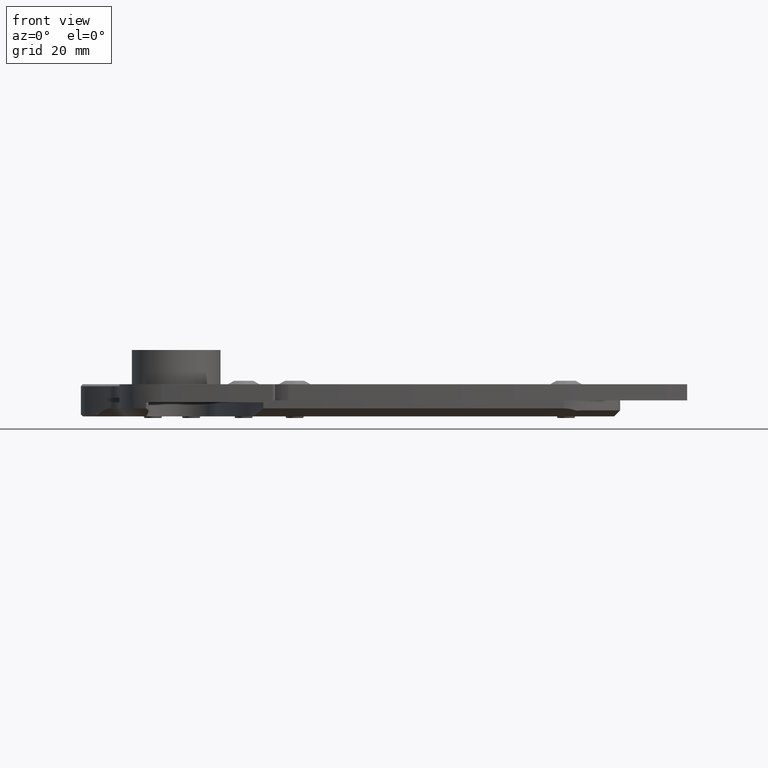
[diagram: clean part render]
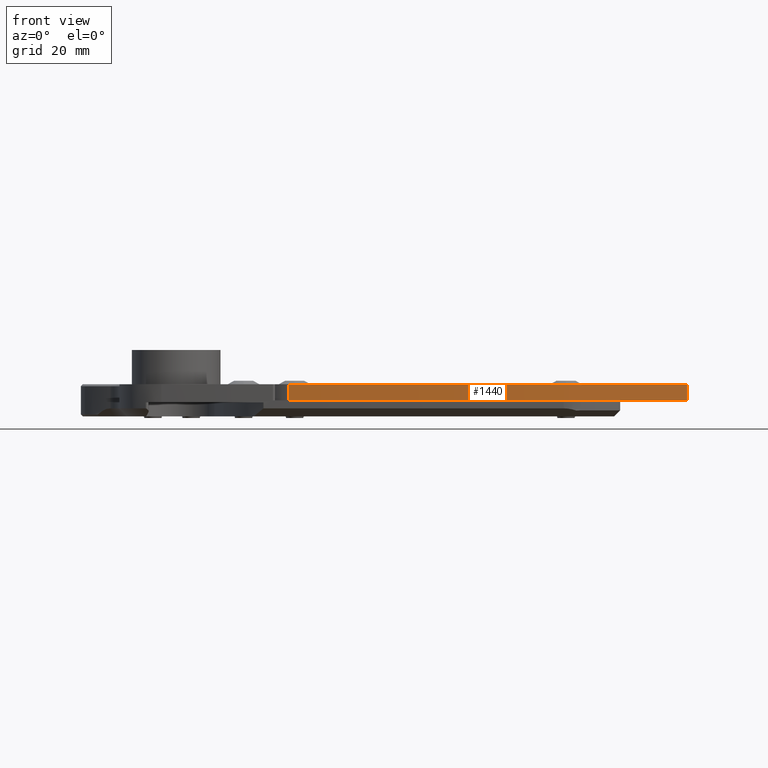
[diagram: same view with one face highlighted and labeled with its STEP entity id]
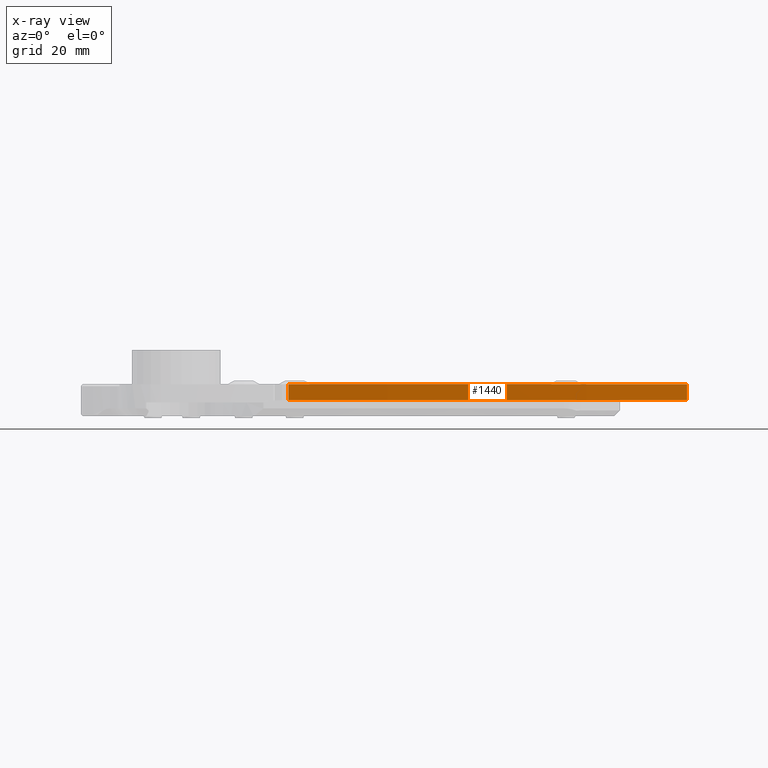
[diagram: x-ray of the same camera — body ghosted, the highlighted face saturated]
A machine part, front view. The second image highlights one B-rep face of the part: STEP entity #1440.
The next image is the same camera in x-ray: the body ghosted, the highlighted face saturated — about 0% of this face is hidden behind the body in this view.
In plain terms, the highlighted cylindrical surface (partial cylindrical patch) has radius 500 mm, axis along (0, 0, -1).
Its self-contained STEP definition (entity closure, byte-faithful):
#227 = DIRECTION ( 'NONE',  ( -0.0000000000000000000, -0.0000000000000000000, 1.000000000000000000 ) ) ;
#488 = EDGE_CURVE ( 'NONE', #5872, #6397, #6781, .T. ) ;
#612 = CARTESIAN_POINT ( 'NONE',  ( 1.095826336180402150, -0.8269945408872719783, 0.07874015748031502893 ) ) ;
#971 = FACE_OUTER_BOUND ( 'NONE', #5162, .T. ) ;
#1440 = ADVANCED_FACE ( 'NONE', ( #971 ), #4505, .T. ) ;
#2091 = ORIENTED_EDGE ( 'NONE', *, *, #6336, .F. ) ;
#2253 = ORIENTED_EDGE ( 'NONE', *, *, #3704, .T. ) ;
#2331 = CARTESIAN_POINT ( 'NONE',  ( 4.992926056778694388, -1.223990738861789662, 0.07874015748031502893 ) ) ;
#2417 = DIRECTION ( 'NONE',  ( 0.0000000000000000000, 0.0000000000000000000, -1.000000000000000000 ) ) ;
#2507 = VECTOR ( 'NONE', #8136, 39.37007874015748143 ) ;
#3038 = ORIENTED_EDGE ( 'NONE', *, *, #6936, .T. ) ;
#3264 = ORIENTED_EDGE ( 'NONE', *, *, #488, .F. ) ;
#3704 = EDGE_CURVE ( 'NONE', #4050, #6397, #4227, .T. ) ;
#3929 = DIRECTION ( 'NONE',  ( -0.0000000000000000000, -0.0000000000000000000, 1.000000000000000000 ) ) ;
#4050 = VERTEX_POINT ( 'NONE', #612 ) ;
#4227 = CIRCLE ( 'NONE', #7208, 19.68503937007874072 ) ;
#4256 = CARTESIAN_POINT ( 'NONE',  ( 4.992926056778694388, -1.223990738861789662, 0.2362204724409451007 ) ) ;
#4505 = CYLINDRICAL_SURFACE ( 'NONE', #8356, 19.68503937007874072 ) ;
#4774 = VECTOR ( 'NONE', #9209, 39.37007874015748143 ) ;
#4917 = AXIS2_PLACEMENT_3D ( 'NONE', #7263, #3929, #8750 ) ;
#5046 = DIRECTION ( 'NONE',  ( 1.000000000000000000, 0.0000000000000000000, 0.0000000000000000000 ) ) ;
#5162 = EDGE_LOOP ( 'NONE', ( #2253, #3264, #2091, #3038 ) ) ;
#5170 = CARTESIAN_POINT ( 'NONE',  ( 4.992926056778694388, -1.223990738861789662, 0.2362204724409451007 ) ) ;
#5872 = VERTEX_POINT ( 'NONE', #4256 ) ;
#6243 = LINE ( 'NONE', #8868, #2507 ) ;
#6336 = EDGE_CURVE ( 'NONE', #8249, #5872, #6755, .T. ) ;
#6397 = VERTEX_POINT ( 'NONE', #2331 ) ;
#6755 = CIRCLE ( 'NONE', #4917, 19.68503937007874072 ) ;
#6781 = LINE ( 'NONE', #5170, #4774 ) ;
#6936 = EDGE_CURVE ( 'NONE', #8249, #4050, #6243, .T. ) ;
#7208 = AXIS2_PLACEMENT_3D ( 'NONE', #8114, #227, #5046 ) ;
#7263 = CARTESIAN_POINT ( 'NONE',  ( 5.029459948999931207, 18.46101472916562258, 0.2362204724409451007 ) ) ;
#7421 = DIRECTION ( 'NONE',  ( 1.000000000000000000, 0.0000000000000000000, 0.0000000000000000000 ) ) ;
#8114 = CARTESIAN_POINT ( 'NONE',  ( 5.029459948999931207, 18.46101472916562258, 0.07874015748031502893 ) ) ;
#8136 = DIRECTION ( 'NONE',  ( 0.0000000000000000000, 0.0000000000000000000, -1.000000000000000000 ) ) ;
#8249 = VERTEX_POINT ( 'NONE', #8548 ) ;
#8356 = AXIS2_PLACEMENT_3D ( 'NONE', #9447, #2417, #7421 ) ;
#8548 = CARTESIAN_POINT ( 'NONE',  ( 1.095826336180402150, -0.8269945408872719783, 0.2362204724409451007 ) ) ;
#8750 = DIRECTION ( 'NONE',  ( 1.000000000000000000, 0.0000000000000000000, 0.0000000000000000000 ) ) ;
#8868 = CARTESIAN_POINT ( 'NONE',  ( 1.095826336180402150, -0.8269945408872719783, 0.2362204724409451007 ) ) ;
#9209 = DIRECTION ( 'NONE',  ( 0.0000000000000000000, 0.0000000000000000000, -1.000000000000000000 ) ) ;
#9447 = CARTESIAN_POINT ( 'NONE',  ( 5.029459948999931207, 18.46101472916562258, 0.2362204724409451007 ) ) ;